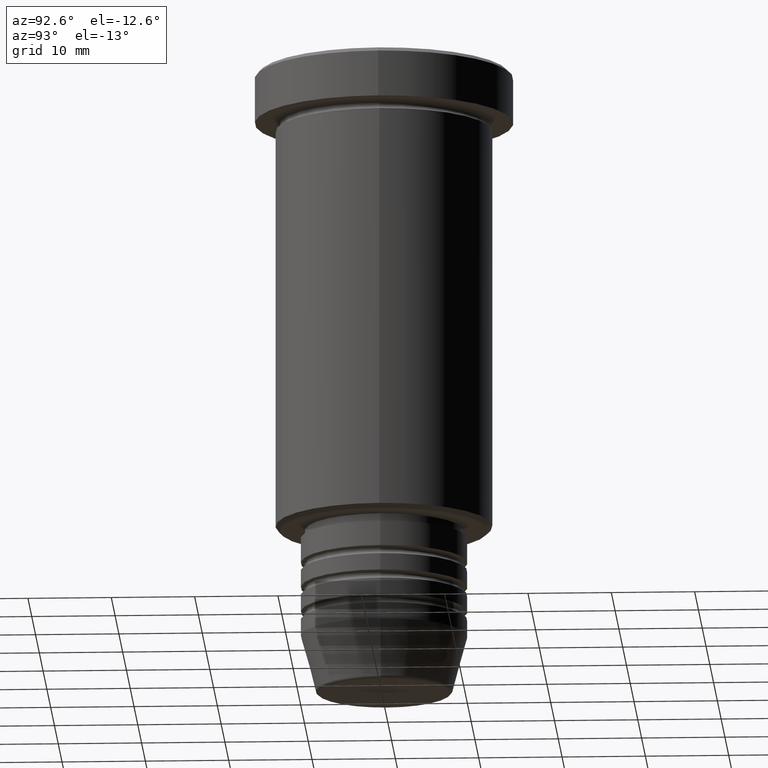
[diagram: clean part render]
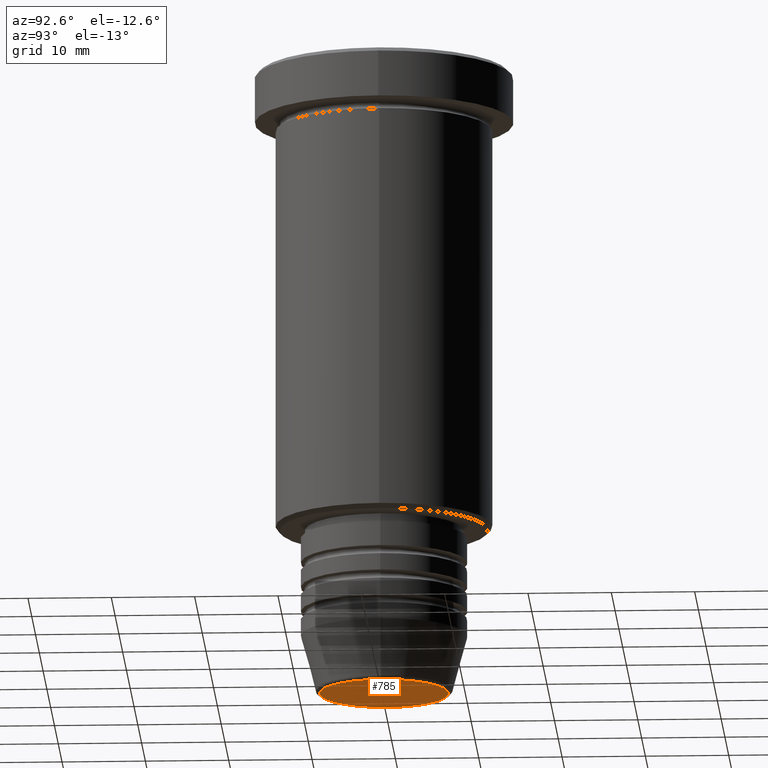
[diagram: same view with one face highlighted and labeled with its STEP entity id]
A machine part, auxiliary view. The second image highlights one B-rep face of the part: STEP entity #785.
In plain terms, the highlighted planar face has unit normal (0, -0, 1).
Its self-contained STEP definition (entity closure, byte-faithful):
#101 = PLANE ( 'NONE',  #1102 ) ;
#106 = DIRECTION ( 'NONE',  ( 0.000000000000000000, -0.000000000000000000, 1.000000000000000000 ) ) ;
#128 = ORIENTED_EDGE ( 'NONE', *, *, #928, .T. ) ;
#203 = VERTEX_POINT ( 'NONE', #450 ) ;
#239 = DIRECTION ( 'NONE',  ( 0.000000000000000000, 0.000000000000000000, -1.000000000000000000 ) ) ;
#302 = DIRECTION ( 'NONE',  ( 1.000000000000000000, 0.000000000000000000, 0.000000000000000000 ) ) ;
#317 = CARTESIAN_POINT ( 'NONE',  ( 0.000000000000000000, 0.000000000000000000, -76.00000000000001421 ) ) ;
#385 = EDGE_CURVE ( 'NONE', #484, #203, #984, .T. ) ;
#450 = CARTESIAN_POINT ( 'NONE',  ( 7.740692158992654726, 0.000000000000000000, -76.00000000000001421 ) ) ;
#484 = VERTEX_POINT ( 'NONE', #676 ) ;
#570 = AXIS2_PLACEMENT_3D ( 'NONE', #317, #239, #1051 ) ;
#595 = DIRECTION ( 'NONE',  ( 1.000000000000000000, 0.000000000000000000, 0.000000000000000000 ) ) ;
#650 = CIRCLE ( 'NONE', #819, 7.740692158992654726 ) ;
#668 = EDGE_LOOP ( 'NONE', ( #128, #746 ) ) ;
#676 = CARTESIAN_POINT ( 'NONE',  ( -7.740692158992654726, 9.775343368540039135E-16, -76.00000000000001421 ) ) ;
#746 = ORIENTED_EDGE ( 'NONE', *, *, #385, .T. ) ;
#785 = ADVANCED_FACE ( 'NONE', ( #943 ), #101, .F. ) ;
#819 = AXIS2_PLACEMENT_3D ( 'NONE', #862, #1035, #595 ) ;
#862 = CARTESIAN_POINT ( 'NONE',  ( 0.000000000000000000, 0.000000000000000000, -76.00000000000001421 ) ) ;
#928 = EDGE_CURVE ( 'NONE', #203, #484, #650, .T. ) ;
#943 = FACE_OUTER_BOUND ( 'NONE', #668, .T. ) ;
#984 = CIRCLE ( 'NONE', #570, 7.740692158992654726 ) ;
#1035 = DIRECTION ( 'NONE',  ( 0.000000000000000000, 0.000000000000000000, -1.000000000000000000 ) ) ;
#1051 = DIRECTION ( 'NONE',  ( 1.000000000000000000, 0.000000000000000000, 0.000000000000000000 ) ) ;
#1095 = CARTESIAN_POINT ( 'NONE',  ( 0.000000000000000000, 0.000000000000000000, -76.00000000000001421 ) ) ;
#1102 = AXIS2_PLACEMENT_3D ( 'NONE', #1095, #106, #302 ) ;